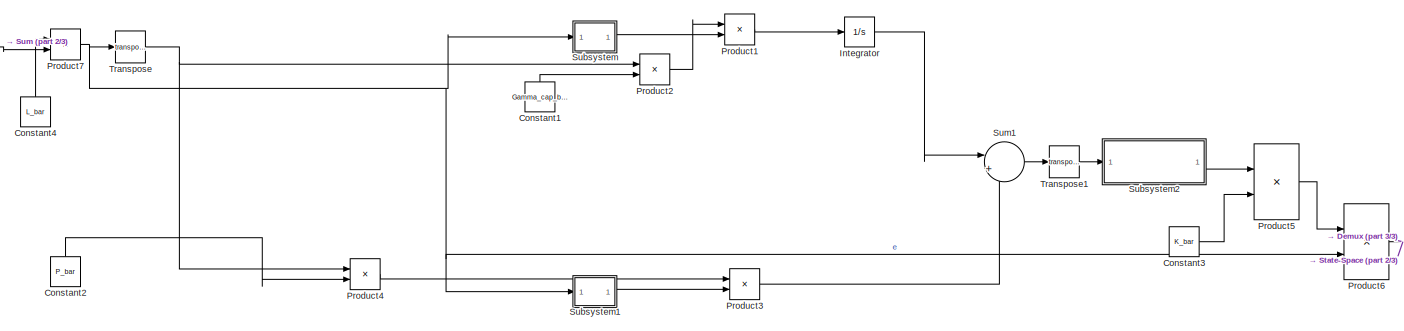
[diagram: root canvas - part 1/3, center side, full height]
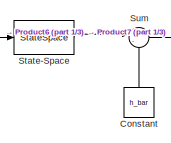
[diagram: root canvas - part 2/3, middle left region]
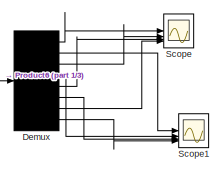
[diagram: root canvas - part 3/3, bottom right region]
MODEL slx_f6b8560b7a96
KIND model
CONFIG AbsTol = auto
CONFIG EnableMultiTasking = off
CONFIG FixedStep = auto
CONFIG MaxStep = auto
CONFIG MinStep = auto
CONFIG RelTol = 1e-3
CONFIG SampleTimeConstraint = Unconstrained
CONFIG SolverName = VariableStepAuto
CONFIG StartTime = 0.0
CONFIG StopTime = 10.0
BLOCK [Constant] Constant
  NameLocation = right
  Value = h_bar
BLOCK [Constant] Constant1
  NameLocation = right
  Value = Gamma_cap_bar
BLOCK [Constant] Constant2
  NameLocation = right
  Value = P_bar
BLOCK [Constant] Constant3
  Value = K_bar
BLOCK [Constant] Constant4
  NameLocation = right
  Value = L_bar
BLOCK [Demux] Demux
  Outputs = 8
BLOCK [Integrator] Integrator
BLOCK [Product] Product1
  Multiplication = Matrix(*)
BLOCK [Product] Product2
  Multiplication = Matrix(*)
BLOCK [Product] Product3
  Multiplication = Matrix(*)
BLOCK [Product] Product4
  Multiplication = Matrix(*)
BLOCK [Product] Product5
  Multiplication = Matrix(*)
BLOCK [Product] Product6
  Multiplication = Matrix(*)
BLOCK [Product] Product7
  Multiplication = Matrix(*)
BLOCK [Scope] Scope
  Floating = off
  NumInputPorts = 4
  ScopeSpecificationString = Simulink.scopes.TimeScopeBlockCfg('CurrentConfiguration', extmgr.ConfigurationSet(extmgr.Configuration('Core','General UI',true),extmgr.Configuration('Core','Source UI',true),extmgr.Configuration('Sources','WiredSimulink',true),extmgr.Configuration('Visuals','Time Domain',true,'SerializedDisplays',{struct('MinYLimReal','-379.98225','MaxYLimReal','202.35227','YLabelReal','','MinYLimMag',' 0.00000',...<+1443ch>
BLOCK [Scope] Scope1
  Floating = off
  NumInputPorts = 4
  ScopeSpecificationString = Simulink.scopes.TimeScopeBlockCfg('CurrentConfiguration', extmgr.ConfigurationSet(extmgr.Configuration('Core','General UI',true),extmgr.Configuration('Core','Source UI',true),extmgr.Configuration('Sources','WiredSimulink',true,'DataLoggingVariableName','ScopeData1'),extmgr.Configuration('Visuals','Time Domain',true,'SerializedDisplays',{struct('MinYLimReal','-1114.51012','MaxYLimReal','398.86156',...<+1416ch>
BLOCK [StateSpace] State-Space
  A = A_bar
  B = B_bar
  C = C_bar
  D = D_bar
  InitialCondition = 0
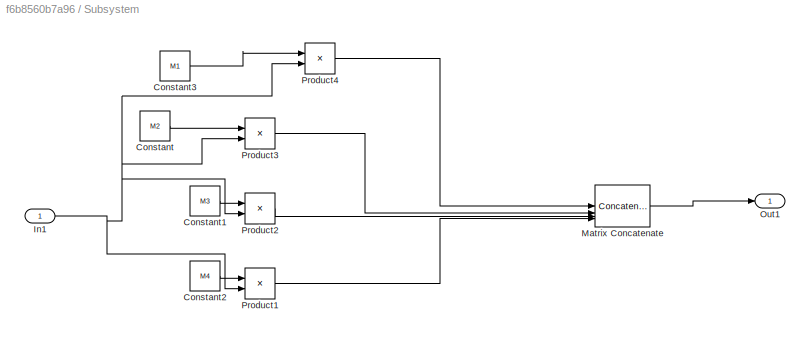
BLOCK [SubSystem] Subsystem
BLOCK [Constant] Subsystem/Constant
  Value = M2
BLOCK [Constant] Subsystem/Constant1
  Value = M3
BLOCK [Constant] Subsystem/Constant2
  Value = M4
BLOCK [Constant] Subsystem/Constant3
  Value = M1
BLOCK [Inport] Subsystem/In1
BLOCK [Concatenate] Subsystem/Matrix Concatenate
  ConcatenateDimension = 2
  Mode = Multidimensional array
  NumInputs = 4
BLOCK [Outport] Subsystem/Out1
BLOCK [Product] Subsystem/Product1
  Multiplication = Matrix(*)
BLOCK [Product] Subsystem/Product2
  Multiplication = Matrix(*)
BLOCK [Product] Subsystem/Product3
  Multiplication = Matrix(*)
BLOCK [Product] Subsystem/Product4
  Multiplication = Matrix(*)
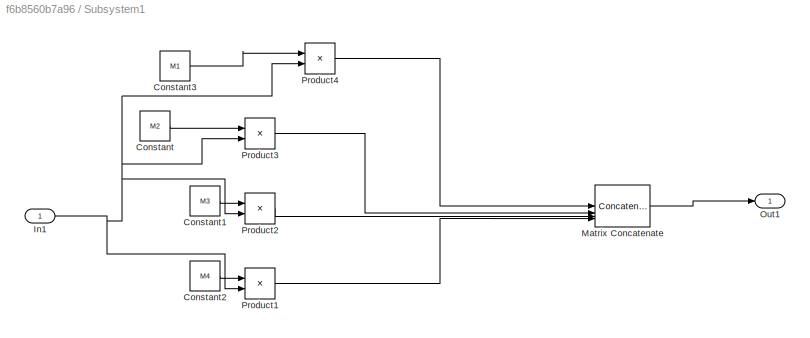
BLOCK [SubSystem] Subsystem1
BLOCK [Constant] Subsystem1/Constant
  Value = M2
BLOCK [Constant] Subsystem1/Constant1
  Value = M3
BLOCK [Constant] Subsystem1/Constant2
  Value = M4
BLOCK [Constant] Subsystem1/Constant3
  Value = M1
BLOCK [Inport] Subsystem1/In1
BLOCK [Concatenate] Subsystem1/Matrix Concatenate
  ConcatenateDimension = 2
  Mode = Multidimensional array
  NumInputs = 4
BLOCK [Outport] Subsystem1/Out1
BLOCK [Product] Subsystem1/Product1
  Multiplication = Matrix(*)
BLOCK [Product] Subsystem1/Product2
  Multiplication = Matrix(*)
BLOCK [Product] Subsystem1/Product3
  Multiplication = Matrix(*)
BLOCK [Product] Subsystem1/Product4
  Multiplication = Matrix(*)
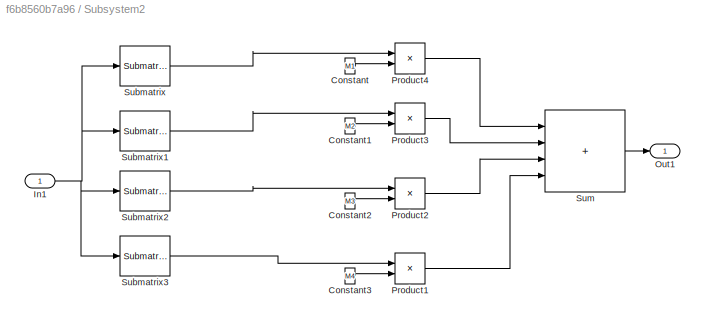
BLOCK [SubSystem] Subsystem2
BLOCK [Constant] Subsystem2/Constant
  NameLocation = left
  Value = M1
BLOCK [Constant] Subsystem2/Constant1
  Value = M2
BLOCK [Constant] Subsystem2/Constant2
  Value = M3
BLOCK [Constant] Subsystem2/Constant3
  Value = M4
BLOCK [Inport] Subsystem2/In1
BLOCK [Outport] Subsystem2/Out1
BLOCK [Product] Subsystem2/Product1
BLOCK [Product] Subsystem2/Product2
BLOCK [Product] Subsystem2/Product3
BLOCK [Product] Subsystem2/Product4
BLOCK [Reference] Subsystem2/Submatrix  REF=matrix_library/Submatrix
  LibrarySourceBlock = simulink/Matrix\nOperations/Submatrix
  SourceBlock = matrix_library/Submatrix
  SourceType = Submatrix
BLOCK [Reference] Subsystem2/Submatrix1  REF=matrix_library/Submatrix
  LibrarySourceBlock = simulink/Matrix\nOperations/Submatrix
  SourceBlock = matrix_library/Submatrix
  SourceType = Submatrix
BLOCK [Reference] Subsystem2/Submatrix2  REF=matrix_library/Submatrix
  LibrarySourceBlock = simulink/Matrix\nOperations/Submatrix
  SourceBlock = matrix_library/Submatrix
  SourceType = Submatrix
BLOCK [Reference] Subsystem2/Submatrix3  REF=matrix_library/Submatrix
  LibrarySourceBlock = simulink/Matrix\nOperations/Submatrix
  SourceBlock = matrix_library/Submatrix
  SourceType = Submatrix
BLOCK [Sum] Subsystem2/Sum
  IconShape = rectangular
  Inputs = ++++
BLOCK [Sum] Sum
  Inputs = |-+
BLOCK [Sum] Sum1
  Inputs = |++
BLOCK [Math] Transpose
  Operator = transpose
BLOCK [Math] Transpose1
  Operator = transpose
LINE Constant1:1 -> Product2:2
LINE Constant2:1 -> Product4:2
LINE Constant3:1 -> Product5:2
LINE Constant4:1 -> Product7:1
LINE Constant:1 -> Sum:2
LINE Demux:1 -> Scope:1
LINE Demux:2 -> Scope1:1
LINE Demux:3 -> Scope:2
LINE Demux:4 -> Scope1:2
LINE Demux:5 -> Scope:3
LINE Demux:6 -> Scope1:3
LINE Demux:7 -> Scope:4
LINE Demux:8 -> Scope1:4
LINE Integrator:1 -> Sum1:1
LINE Product1:1 -> Integrator:1
LINE Product2:1 -> Product1:1
LINE Product3:1 -> Sum1:2
LINE Product4:1 -> Product3:1
LINE Product5:1 -> Product6:1
NET Product6:1 -> Demux:1, State-Space:1
NET Product7:1 -> Product6:2, Subsystem1:1, Subsystem:1, Transpose:1
LINE State-Space:1 -> Sum:1
LINE Subsystem/Constant1:1 -> Subsystem/Product2:1
LINE Subsystem/Constant2:1 -> Subsystem/Product1:1
LINE Subsystem/Constant3:1 -> Subsystem/Product4:1
LINE Subsystem/Constant:1 -> Subsystem/Product3:1
NET Subsystem/In1:1 -> Subsystem/Product1:2, Subsystem/Product2:2, Subsystem/Product3:2, Subsystem/Product4:2
LINE Subsystem/Matrix Concatenate:1 -> Subsystem/Out1:1
LINE Subsystem/Product1:1 -> Subsystem/Matrix Concatenate:4
LINE Subsystem/Product2:1 -> Subsystem/Matrix Concatenate:3
LINE Subsystem/Product3:1 -> Subsystem/Matrix Concatenate:2
LINE Subsystem/Product4:1 -> Subsystem/Matrix Concatenate:1
LINE Subsystem1/Constant1:1 -> Subsystem1/Product2:1
LINE Subsystem1/Constant2:1 -> Subsystem1/Product1:1
LINE Subsystem1/Constant3:1 -> Subsystem1/Product4:1
LINE Subsystem1/Constant:1 -> Subsystem1/Product3:1
NET Subsystem1/In1:1 -> Subsystem1/Product1:2, Subsystem1/Product2:2, Subsystem1/Product3:2, Subsystem1/Product4:2
LINE Subsystem1/Matrix Concatenate:1 -> Subsystem1/Out1:1
LINE Subsystem1/Product1:1 -> Subsystem1/Matrix Concatenate:4
LINE Subsystem1/Product2:1 -> Subsystem1/Matrix Concatenate:3
LINE Subsystem1/Product3:1 -> Subsystem1/Matrix Concatenate:2
LINE Subsystem1/Product4:1 -> Subsystem1/Matrix Concatenate:1
LINE Subsystem1:1 -> Product3:2
LINE Subsystem2/Constant1:1 -> Subsystem2/Product3:2
LINE Subsystem2/Constant2:1 -> Subsystem2/Product2:2
LINE Subsystem2/Constant3:1 -> Subsystem2/Product1:2
LINE Subsystem2/Constant:1 -> Subsystem2/Product4:2
NET Subsystem2/In1:1 -> Subsystem2/Submatrix1:1, Subsystem2/Submatrix2:1, Subsystem2/Submatrix3:1, Subsystem2/Submatrix:1
LINE Subsystem2/Product1:1 -> Subsystem2/Sum:4
LINE Subsystem2/Product2:1 -> Subsystem2/Sum:3
LINE Subsystem2/Product3:1 -> Subsystem2/Sum:2
LINE Subsystem2/Product4:1 -> Subsystem2/Sum:1
LINE Subsystem2/Submatrix1:1 -> Subsystem2/Product3:1
LINE Subsystem2/Submatrix2:1 -> Subsystem2/Product2:1
LINE Subsystem2/Submatrix3:1 -> Subsystem2/Product1:1
LINE Subsystem2/Submatrix:1 -> Subsystem2/Product4:1
LINE Subsystem2/Sum:1 -> Subsystem2/Out1:1
LINE Subsystem2:1 -> Product5:1
LINE Subsystem:1 -> Product1:2
LINE Sum1:1 -> Transpose1:1
LINE Sum:1 -> Product7:2
LINE Transpose1:1 -> Subsystem2:1
NET Transpose:1 -> Product2:1, Product4:1
note: NET lines group one-source signal fan-out (src -> all destinations, sorted); 1:1 wires keep LINE
